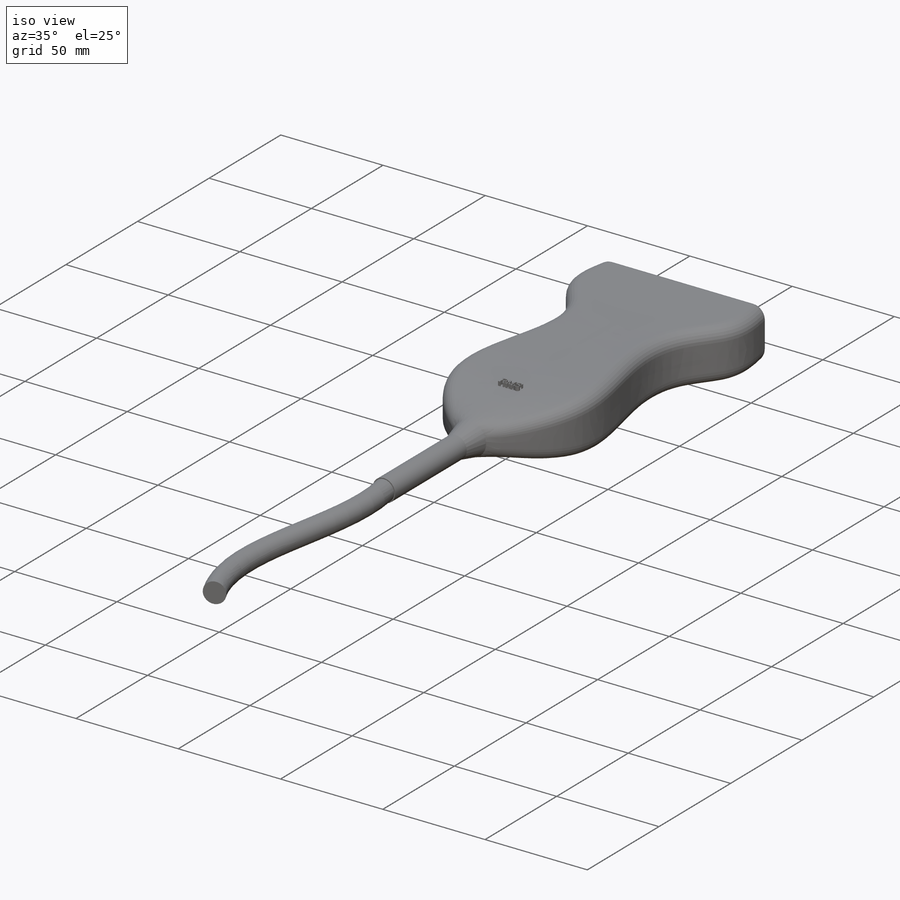
[diagram: iso view]
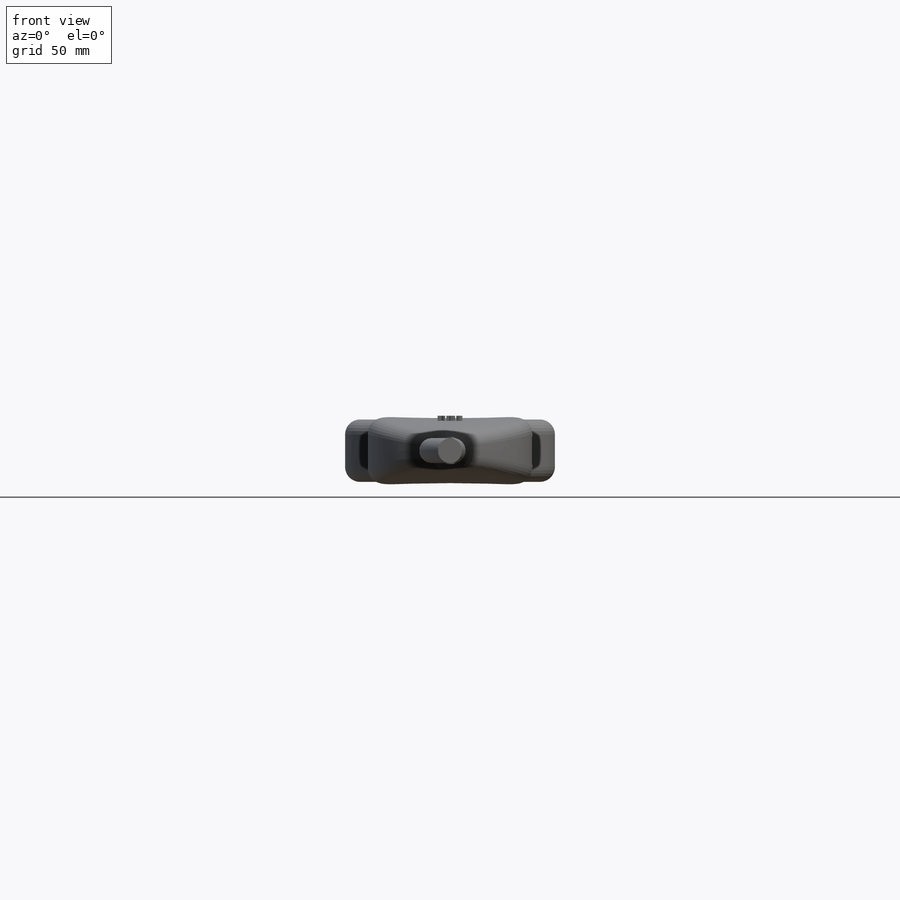
[diagram: front view]
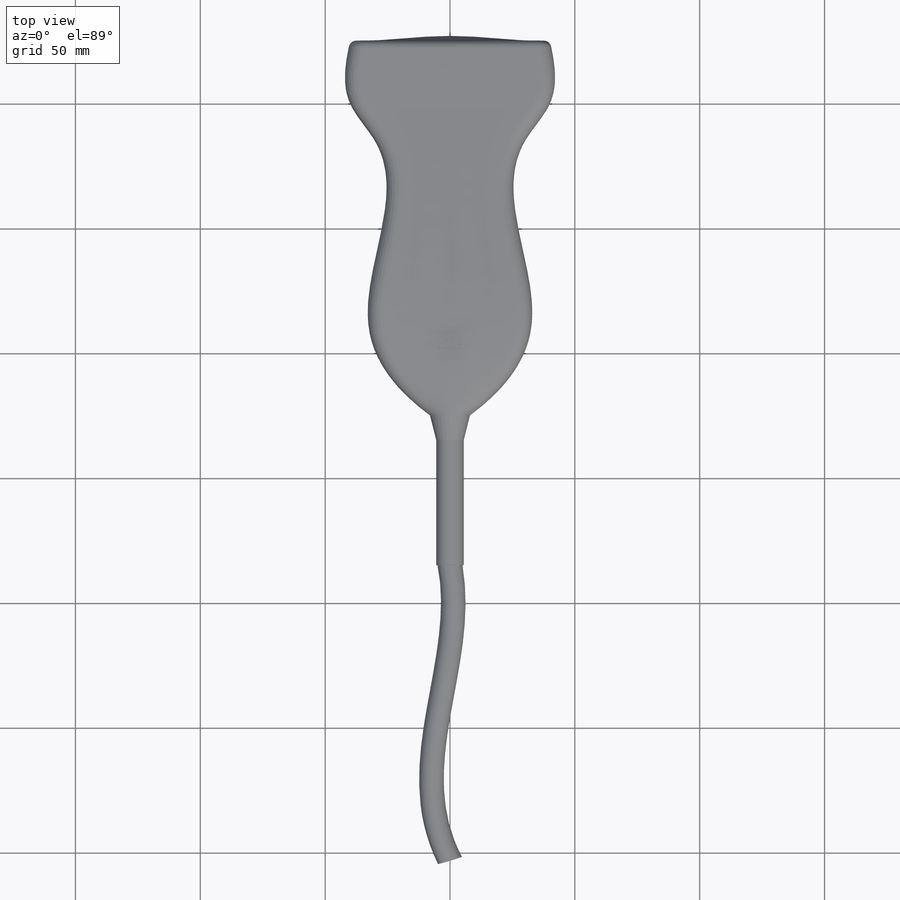
[diagram: top view]
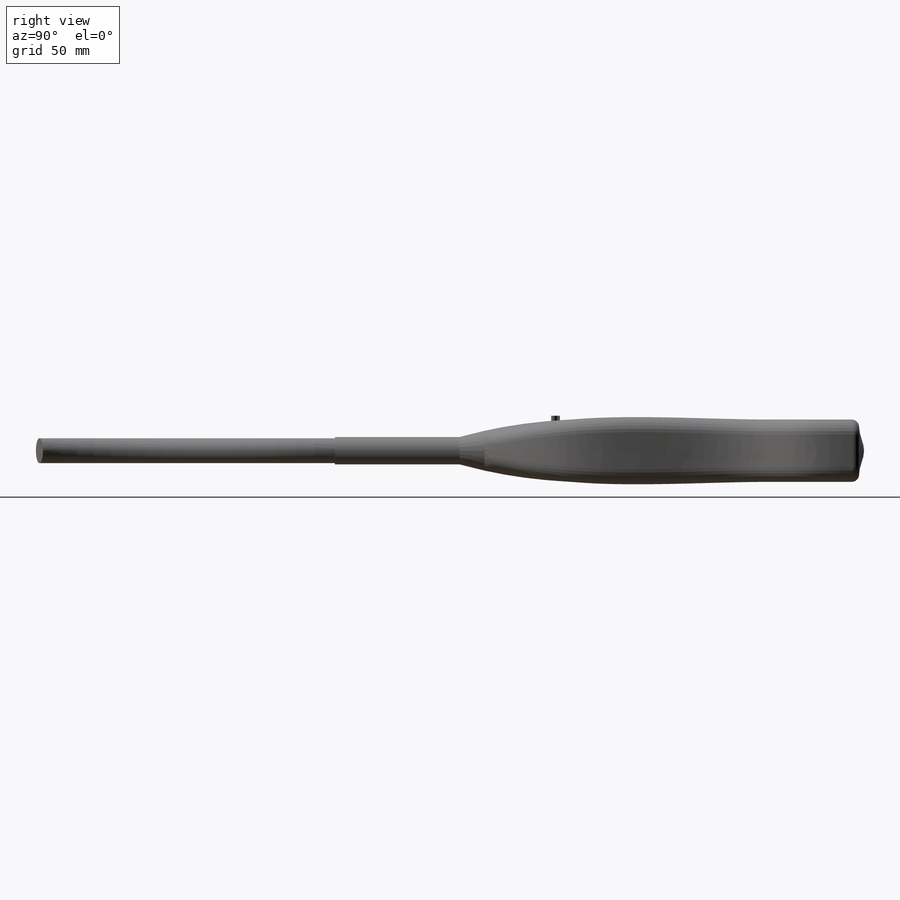
[diagram: right view]
SOLIDWORKS PART (.sldprt)
format: sldprt  version: not decoded by parser v0  size: 652,800 bytes
history: native  units: mm
features: sketch x9, plane x5, fillet x3, material x1, dome x1, revolve x1, sweep x1, extrude x1 (+11 scaffold rows collapsed)
feature tree (33):
  scaffold x11  (default folders/planes/origin — collapsed)
  material  "Material <not specified>"
  plane  "Plane1"  Offset=25mm
  plane  "Plane2"  Offset=50mm
  sketch  "Sketch1"  dims[D1=80.0mm D2=25.0mm D3=12.5mm D4=40.0mm]
  sketch  "Sketch2"  dims[D1=12.5mm D2=25.0mm D3=80.0mm D4=40.0mm]
  plane  "Plane3"  Offset=15mm
  sketch  "Sketch3"  dims[D1=25.0mm D2=60.0mm D3=12.5mm D4=30.0mm]
  plane  "Plane4"  Offset=75mm
  sketch  "Sketch4"  dims[c1.D1=65.0mm c1.D2=25.0mm c1.D3=32.5mm c1.D4=~36.958152mm c2.D3=32.5mm c2.D4=12.5mm]
  plane  "Plane5"  Offset=35mm
  sketch  "Sketch5"  dims[D1=16.0mm]
  fillet  "Fillet1"  Radius=6mm
  fillet  "Fillet2"  Radius=3mm
  dome  "Dome1"
  sketch  "Sketch6"  dims[c1.D1=50.0mm c1.D2=5.5mm c1.D3=8.0mm c1.D4=6.0mm c2.D1=8.0mm c2.D2=10.0mm c2.D3=50.0mm c2.D4=5.5mm]
  revolve  "Revolve1"  Angle=360deg
  sketch  "Sketch7"  dims[D1=10.0mm]
  sketch  "Sketch8"
  sweep  "Sweep1"
  sketch  "Sketch9"
  fillet  "Fillet3"  Radius=6mm
  extrude  "Boss-Extrude1"  Depth=14mm
decode coverage: 12 of 16 modeling features carry decoded parameters
note: ~ marks probable driven/reference dimensions
note: suppression state not decoded; provenance and decode notes live in map.json
